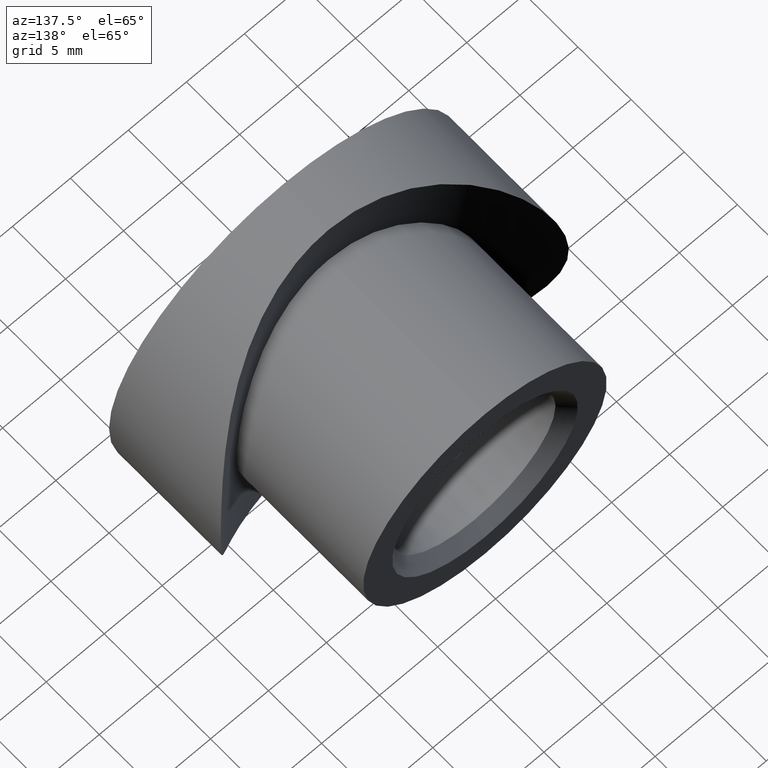
[diagram: clean part render]
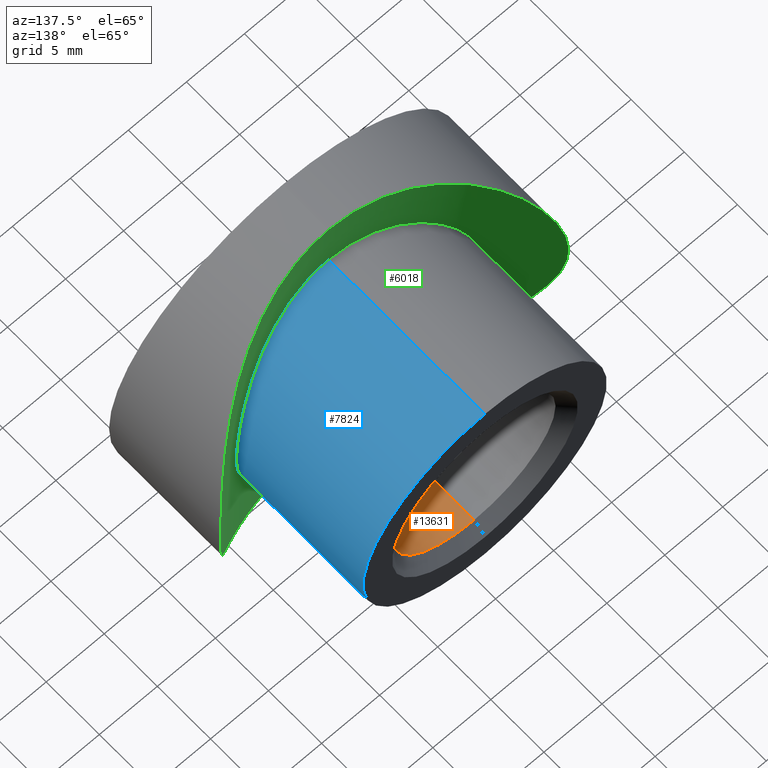
[diagram: same view with three faces highlighted in distinct colors, each labeled with its STEP entity id]
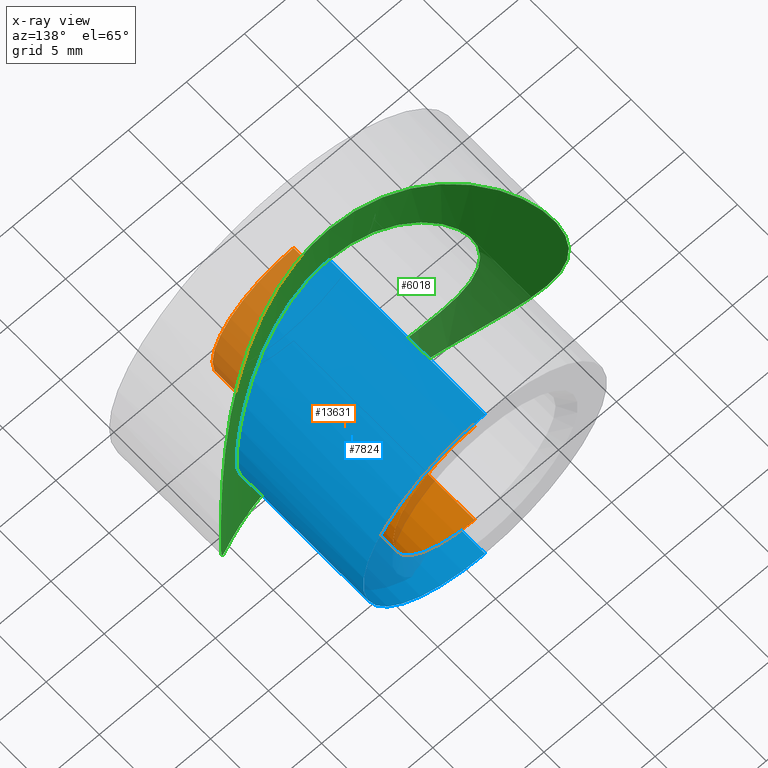
[diagram: x-ray of the same camera — body ghosted, the three highlighted faces saturated]
A machine part, auxiliary view with three faces highlighted in distinct colors.
The next image is the same camera in x-ray (body ghosted, the three faces saturated) — at least one of them is partly hidden behind the body in this view.
Their STEP definitions:

[orange] entity #13631 — the highlighted cylindrical surface (partial cylindrical patch) has radius 7 mm, axis along (-0, 1, -0).
#690 = DIRECTION ( 'NONE',  ( -0.0000000000000000000, 1.000000000000000000, -0.0000000000000000000 ) ) ;
#1044 = VECTOR ( 'NONE', #10363, 1000.000000000000000 ) ;
#1301 = VERTEX_POINT ( 'NONE', #10886 ) ;
#1446 = VERTEX_POINT ( 'NONE', #3519 ) ;
#2042 = EDGE_LOOP ( 'NONE', ( #4535, #11118, #5395, #13343 ) ) ;
#3502 = CIRCLE ( 'NONE', #4972, 6.999999999999992900 ) ;
#3519 = CARTESIAN_POINT ( 'NONE',  ( 8.572527594031464300E-016, 17.99999999999999600, -6.999999999999992900 ) ) ;
#3814 = CARTESIAN_POINT ( 'NONE',  ( 0.0000000000000000000, 0.9999999999999974500, 0.0000000000000000000 ) ) ;
#4093 = EDGE_CURVE ( 'NONE', #13008, #1301, #7764, .T. ) ;
#4130 = AXIS2_PLACEMENT_3D ( 'NONE', #3814, #6884, #13334 ) ;
#4535 = ORIENTED_EDGE ( 'NONE', *, *, #12600, .F. ) ;
#4972 = AXIS2_PLACEMENT_3D ( 'NONE', #13055, #5634, #11881 ) ;
#5395 = ORIENTED_EDGE ( 'NONE', *, *, #7915, .T. ) ;
#5634 = DIRECTION ( 'NONE',  ( 0.0000000000000000000, 1.000000000000000000, 0.0000000000000000000 ) ) ;
#5985 = VECTOR ( 'NONE', #690, 1000.000000000000000 ) ;
#6166 = CARTESIAN_POINT ( 'NONE',  ( 0.0000000000000000000, 19.00000000000000000, 0.0000000000000000000 ) ) ;
#6306 = DIRECTION ( 'NONE',  ( 0.0000000000000000000, 0.0000000000000000000, 1.000000000000000000 ) ) ;
#6884 = DIRECTION ( 'NONE',  ( -0.0000000000000000000, -1.000000000000000000, -0.0000000000000000000 ) ) ;
#7172 = LINE ( 'NONE', #9072, #1044 ) ;
#7237 = DIRECTION ( 'NONE',  ( -0.0000000000000000000, 1.000000000000000000, -0.0000000000000000000 ) ) ;
#7764 = CIRCLE ( 'NONE', #4130, 6.999999999999992900 ) ;
#7915 = EDGE_CURVE ( 'NONE', #1301, #13677, #7172, .T. ) ;
#9072 = CARTESIAN_POINT ( 'NONE',  ( 0.0000000000000000000, 19.00000000000000000, 6.999999999999992900 ) ) ;
#9827 = AXIS2_PLACEMENT_3D ( 'NONE', #6166, #7237, #6306 ) ;
#10249 = CARTESIAN_POINT ( 'NONE',  ( 8.572527594031464300E-016, 19.00000000000000000, -6.999999999999992900 ) ) ;
#10363 = DIRECTION ( 'NONE',  ( -0.0000000000000000000, 1.000000000000000000, -0.0000000000000000000 ) ) ;
#10808 = CYLINDRICAL_SURFACE ( 'NONE', #9827, 6.999999999999992900 ) ;
#10885 = EDGE_CURVE ( 'NONE', #13677, #1446, #3502, .T. ) ;
#10886 = CARTESIAN_POINT ( 'NONE',  ( 0.0000000000000000000, 0.9999999999999974500, 6.999999999999992900 ) ) ;
#10996 = LINE ( 'NONE', #10249, #5985 ) ;
#11118 = ORIENTED_EDGE ( 'NONE', *, *, #4093, .T. ) ;
#11776 = CARTESIAN_POINT ( 'NONE',  ( 0.0000000000000000000, 17.99999999999999600, 6.999999999999992900 ) ) ;
#11881 = DIRECTION ( 'NONE',  ( 0.0000000000000000000, 0.0000000000000000000, -1.000000000000000000 ) ) ;
#12106 = CARTESIAN_POINT ( 'NONE',  ( 8.572527594031464300E-016, 0.9999999999999974500, -6.999999999999992900 ) ) ;
#12600 = EDGE_CURVE ( 'NONE', #13008, #1446, #10996, .T. ) ;
#13008 = VERTEX_POINT ( 'NONE', #12106 ) ;
#13055 = CARTESIAN_POINT ( 'NONE',  ( 0.0000000000000000000, 17.99999999999999600, 0.0000000000000000000 ) ) ;
#13334 = DIRECTION ( 'NONE',  ( 0.0000000000000000000, 0.0000000000000000000, 1.000000000000000000 ) ) ;
#13343 = ORIENTED_EDGE ( 'NONE', *, *, #10885, .T. ) ;
#13631 = ADVANCED_FACE ( 'NONE', ( #13640 ), #10808, .F. ) ;
#13640 = FACE_OUTER_BOUND ( 'NONE', #2042, .T. ) ;
#13677 = VERTEX_POINT ( 'NONE', #11776 ) ;

[blue] entity #7824 — the highlighted cylindrical surface (partial cylindrical patch) has radius 10.5 mm, axis along (0, -1, 0).
#166 = CARTESIAN_POINT ( 'NONE',  ( 0.0000000000000000000, 19.00000000000000000, -10.50000000000000000 ) ) ;
#547 = DIRECTION ( 'NONE',  ( 0.0000000000000000000, -1.000000000000000000, 0.0000000000000000000 ) ) ;
#624 = CARTESIAN_POINT ( 'NONE',  ( 7.890439009454208700, 5.821697082806758200, 6.935880899200501700 ) ) ;
#673 = CARTESIAN_POINT ( 'NONE',  ( 10.41327458402616900, 7.033670763152573000, 1.391696176524313900 ) ) ;
#719 = CARTESIAN_POINT ( 'NONE',  ( 8.322389665664941200, 6.000449653503129500, 6.411185683057731000 ) ) ;
#1628 = CARTESIAN_POINT ( 'NONE',  ( 2.758563506937874000, 4.477584389150058200, 10.13705780825302900 ) ) ;
#1671 = CARTESIAN_POINT ( 'NONE',  ( 6.148089220757382700, 5.208920573632432200, -8.518664480175736700 ) ) ;
#1720 = CARTESIAN_POINT ( 'NONE',  ( 10.49933800874602200, 7.082510975959623400, -0.7083739501484708200 ) ) ;
#1811 = CARTESIAN_POINT ( 'NONE',  ( 10.50032402119260200, 7.083073122990842100, 0.3393648755433190700 ) ) ;
#1870 = VECTOR ( 'NONE', #547, 1000.000000000000000 ) ;
#2635 = VERTEX_POINT ( 'NONE', #166 ) ;
#2703 = CARTESIAN_POINT ( 'NONE',  ( 9.099530594543464800, 6.347677384681916600, -5.283144877511441400 ) ) ;
#2742 = CARTESIAN_POINT ( 'NONE',  ( 4.698843520622547000, 4.817199949430183800, -9.415080573924516500 ) ) ;
#2791 = CARTESIAN_POINT ( 'NONE',  ( 3.419655245752494900, 4.574953076819298300, 9.933557853552299500 ) ) ;
#2892 = CARTESIAN_POINT ( 'NONE',  ( 9.418170164262146900, 6.504534170963948400, 4.692893287012983800 ) ) ;
#3121 = EDGE_CURVE ( 'NONE', #2635, #3693, #7619, .T. ) ;
#3189 = ORIENTED_EDGE ( 'NONE', *, *, #13018, .F. ) ;
#3404 = CARTESIAN_POINT ( 'NONE',  ( 2.904773166325315500E-017, 4.300000000000001600, -10.50000000000000000 ) ) ;
#3417 = AXIS2_PLACEMENT_3D ( 'NONE', #6276, #10729, #5372 ) ;
#3588 = DIRECTION ( 'NONE',  ( 0.0000000000000000000, -1.000000000000000000, 0.0000000000000000000 ) ) ;
#3646 = CARTESIAN_POINT ( 'NONE',  ( 3.420527152212106300, 4.575054077402168900, -9.933350857110907500 ) ) ;
#3693 = VERTEX_POINT ( 'NONE', #8109 ) ;
#3779 = CARTESIAN_POINT ( 'NONE',  ( 0.6968046487502555000, 4.300000000000001600, 10.49999999999999800 ) ) ;
#3820 = CARTESIAN_POINT ( 'NONE',  ( 7.896984410600967200, 5.824337110095347800, -6.928356481983480600 ) ) ;
#3967 = CARTESIAN_POINT ( 'NONE',  ( 3.742320845766996300, 4.630449393884440200, 9.816404740895485800 ) ) ;
#4030 = LINE ( 'NONE', #11383, #1870 ) ;
#4188 = ORIENTED_EDGE ( 'NONE', *, *, #9175, .F. ) ;
#4719 = VERTEX_POINT ( 'NONE', #7898 ) ;
#4870 = CARTESIAN_POINT ( 'NONE',  ( 5.280986632691608000, 4.965963672652332400, 9.081716031919885500 ) ) ;
#4916 = CARTESIAN_POINT ( 'NONE',  ( 10.48295061196475700, 7.073135114375010500, 0.6934351283181737800 ) ) ;
#4960 = CARTESIAN_POINT ( 'NONE',  ( 8.326664373522946900, 6.002289022832718100, -6.405555926960670600 ) ) ;
#5053 = CARTESIAN_POINT ( 'NONE',  ( 6.945566392784113100, 5.468151671198616400, -7.881874580879978600 ) ) ;
#5372 = DIRECTION ( 'NONE',  ( 0.0000000000000000000, 0.0000000000000000000, -1.000000000000000000 ) ) ;
#5378 = FACE_OUTER_BOUND ( 'NONE', #10359, .T. ) ;
#5825 = AXIS2_PLACEMENT_3D ( 'NONE', #5903, #6998, #8086 ) ;
#5903 = CARTESIAN_POINT ( 'NONE',  ( 0.0000000000000000000, 19.00000000000000000, 0.0000000000000000000 ) ) ;
#5920 = CARTESIAN_POINT ( 'NONE',  ( 7.194948269318201600, 5.556649647448783600, -7.654810200033760600 ) ) ;
#6011 = CARTESIAN_POINT ( 'NONE',  ( 9.817696255442642800, 6.709703220488080400, 3.739202374496441100 ) ) ;
#6032 = VECTOR ( 'NONE', #3588, 1000.000000000000000 ) ;
#6276 = CARTESIAN_POINT ( 'NONE',  ( 0.0000000000000000000, 19.00000000000000000, 0.0000000000000000000 ) ) ;
#6683 = CYLINDRICAL_SURFACE ( 'NONE', #3417, 10.50000000000000000 ) ;
#6714 = CARTESIAN_POINT ( 'NONE',  ( 3.747784961578300800, 4.631400502847485600, -9.814393819435023800 ) ) ;
#6930 = CARTESIAN_POINT ( 'NONE',  ( 6.427913481522175200, 5.289310483119205500, 8.330752378494697300 ) ) ;
#6978 = CARTESIAN_POINT ( 'NONE',  ( 9.936382722030831600, 6.772438335978074900, 3.411430120636048400 ) ) ;
#6998 = DIRECTION ( 'NONE',  ( 0.0000000000000000000, -1.000000000000000000, 0.0000000000000000000 ) ) ;
#7022 = CARTESIAN_POINT ( 'NONE',  ( 4.372657016616589200, 4.753362237969396300, 9.552310608683706400 ) ) ;
#7069 = CARTESIAN_POINT ( 'NONE',  ( 10.42968844074097700, 7.042311886337823300, -1.397457432956600500 ) ) ;
#7112 = CARTESIAN_POINT ( 'NONE',  ( 9.815874038798524400, 6.708763668050159400, -3.743645389992564400 ) ) ;
#7619 = CIRCLE ( 'NONE', #5825, 10.50000000000000000 ) ;
#7824 = ADVANCED_FACE ( 'NONE', ( #5378 ), #6683, .T. ) ;
#7834 = VERTEX_POINT ( 'NONE', #12838 ) ;
#7885 = CARTESIAN_POINT ( 'NONE',  ( 1.398793842759510400, 4.335184064037712800, -10.42946661615356900 ) ) ;
#7898 = CARTESIAN_POINT ( 'NONE',  ( 1.285879310242526200E-015, 4.300000000000003400, 10.50000000000000000 ) ) ;
#8020 = CARTESIAN_POINT ( 'NONE',  ( 9.420525729007872300, 6.505751420387722900, -4.687083399661943000 ) ) ;
#8064 = CARTESIAN_POINT ( 'NONE',  ( 6.948484631111452500, 5.464596505064499800, 7.900808427189319100 ) ) ;
#8086 = DIRECTION ( 'NONE',  ( 0.0000000000000000000, 0.0000000000000000000, -1.000000000000000000 ) ) ;
#8109 = CARTESIAN_POINT ( 'NONE',  ( 1.285879139104720800E-015, 19.00000000000000000, 10.50000000000000000 ) ) ;
#8112 = CARTESIAN_POINT ( 'NONE',  ( 10.13740662817753700, 6.880482679380179400, -2.757436048349687600 ) ) ;
#8156 = CARTESIAN_POINT ( 'NONE',  ( 4.680325839736120500, 4.820782951441332300, 9.405367400213373600 ) ) ;
#8370 = EDGE_CURVE ( 'NONE', #3693, #4719, #4030, .T. ) ;
#8958 = CARTESIAN_POINT ( 'NONE',  ( 2.417888207784877300, 4.435567155295137500, -10.22369385998308100 ) ) ;
#8967 = B_SPLINE_CURVE_WITH_KNOTS ( 'NONE', 3,
 ( #3404, #11951, #7885, #8958, #10134, #3646, #6714, #2742, #9093, #1671, #12382, #5053, #5920, #10234, #3820, #4960, #9146, #2703, #8020, #7112, #13526, #8112, #13383, #7069, #1720, #1811, #4916, #673, #11237, #12431, #12474, #6978, #6011, #2892, #13475, #9198, #719, #624, #11334, #8064, #6930, #13431, #4870, #8156, #7022, #3967, #2791, #1628, #11281, #10183, #3779, #12332 ),
 .UNSPECIFIED., .F., .F.,
 ( 4, 2, 2, 2, 2, 2, 2, 2, 2, 2, 2, 2, 2, 2, 2, 2, 2, 2, 2, 2, 2, 2, 2, 2, 2, 4 ),
 ( 2.816877903401058500E-020, 0.002086768023174359700, 0.003130152034761539800, 0.004173536046348719400, 0.006260304069523081300, 0.007303688081110262600, 0.008347072092697444000, 0.009390456104284622800, 0.01043384011587180300, 0.01252060813904616100, 0.01356399215063334000, 0.01460737616222051700, 0.01669414418539487400, 0.01773752819698205500, 0.01878091220856923500, 0.01982429622015641600, 0.02086768023174359300, 0.02295444825491795000, 0.02399783226650512700, 0.02504121627809230400, 0.02712798430126665800, 0.02817136831285383200, 0.02921475232444100500, 0.03025813633602818600, 0.03130152034761535900, 0.03338828837078971400 ),
 .UNSPECIFIED. ) ;
#9093 = CARTESIAN_POINT ( 'NONE',  ( 5.298212740814173900, 4.964261319171495900, -9.090958372024250200 ) ) ;
#9146 = CARTESIAN_POINT ( 'NONE',  ( 8.530992962269181100, 6.091100270023599900, -6.130899468036130200 ) ) ;
#9175 = EDGE_CURVE ( 'NONE', #2635, #7834, #11716, .T. ) ;
#9198 = CARTESIAN_POINT ( 'NONE',  ( 8.526829277208397800, 6.089272672983135200, 6.136653468886832400 ) ) ;
#10134 = CARTESIAN_POINT ( 'NONE',  ( 2.754303605458389400, 4.476984528578618900, -10.13830739810374500 ) ) ;
#10183 = CARTESIAN_POINT ( 'NONE',  ( 1.388380600808600600, 4.334273294225856600, 10.43132634832901800 ) ) ;
#10234 = CARTESIAN_POINT ( 'NONE',  ( 7.670657698409738300, 5.734739709363876300, -7.178050589856086500 ) ) ;
#10359 = EDGE_LOOP ( 'NONE', ( #13712, #10726, #3189, #4188 ) ) ;
#10726 = ORIENTED_EDGE ( 'NONE', *, *, #8370, .T. ) ;
#10729 = DIRECTION ( 'NONE',  ( 0.0000000000000000000, -1.000000000000000000, 0.0000000000000000000 ) ) ;
#11237 = CARTESIAN_POINT ( 'NONE',  ( 10.36129669431563000, 7.004333769178497700, 1.735969472724488800 ) ) ;
#11281 = CARTESIAN_POINT ( 'NONE',  ( 2.417858127414836700, 4.435507150782160400, 10.22382045006685800 ) ) ;
#11334 = CARTESIAN_POINT ( 'NONE',  ( 7.663281591941424300, 5.731873553342794000, 7.185935454803098000 ) ) ;
#11383 = CARTESIAN_POINT ( 'NONE',  ( 1.285879139104720800E-015, 19.00000000000000000, 10.50000000000000000 ) ) ;
#11716 = LINE ( 'NONE', #13421, #6032 ) ;
#11951 = CARTESIAN_POINT ( 'NONE',  ( 0.7063582450768741700, 4.300000000000000700, -10.49999999999999600 ) ) ;
#12332 = CARTESIAN_POINT ( 'NONE',  ( 1.285879310242526200E-015, 4.300000000000003400, 10.50000000000000000 ) ) ;
#12382 = CARTESIAN_POINT ( 'NONE',  ( 6.422878217163275700, 5.294493933777248500, -8.313331151396738500 ) ) ;
#12431 = CARTESIAN_POINT ( 'NONE',  ( 10.22430701288150200, 6.928255746539877100, 2.415285760362441400 ) ) ;
#12474 = CARTESIAN_POINT ( 'NONE',  ( 10.13929250169866600, 6.881514158143426500, 2.750328095273896000 ) ) ;
#12838 = CARTESIAN_POINT ( 'NONE',  ( 2.904773166325315500E-017, 4.300000000000001600, -10.50000000000000000 ) ) ;
#13018 = EDGE_CURVE ( 'NONE', #7834, #4719, #8967, .T. ) ;
#13383 = CARTESIAN_POINT ( 'NONE',  ( 10.22379430609146700, 6.927972839381005200, -2.417509472307104900 ) ) ;
#13421 = CARTESIAN_POINT ( 'NONE',  ( 0.0000000000000000000, 19.00000000000000000, -10.50000000000000000 ) ) ;
#13431 = CARTESIAN_POINT ( 'NONE',  ( 5.575016568920773400, 5.044030189827684500, 8.904300477055596000 ) ) ;
#13475 = CARTESIAN_POINT ( 'NONE',  ( 9.094919100876024800, 6.345495096600614300, 5.290914838471390000 ) ) ;
#13526 = CARTESIAN_POINT ( 'NONE',  ( 9.933179071554413000, 6.770734346207996500, -3.420880038555818500 ) ) ;
#13712 = ORIENTED_EDGE ( 'NONE', *, *, #3121, .T. ) ;

[green] entity #6018 — the highlighted cylindrical surface (partial cylindrical patch) has radius 21.2 mm, axis along (-0, -0, 1).
#434 = CARTESIAN_POINT ( 'NONE',  ( 6.351530455719399400, 5.268324486726907500, -13.59783177504357700 ) ) ;
#475 = CARTESIAN_POINT ( 'NONE',  ( 6.950350054891880900E-016, 4.300000000000002500, -15.00000000000000000 ) ) ;
#537 = CARTESIAN_POINT ( 'NONE',  ( -2.027758882697915600, 4.391114784360748800, 14.87099088058241800 ) ) ;
#604 = CARTESIAN_POINT ( 'NONE',  ( 14.89566689747022100, 10.41489345679889800, 1.784251289190086100 ) ) ;
#624 = CARTESIAN_POINT ( 'NONE',  ( 7.890439009454208700, 5.821697082806758200, 6.935880899200501700 ) ) ;
#653 = CARTESIAN_POINT ( 'NONE',  ( 14.99378779998259700, 10.51244968222521500, -0.5022815987675073300 ) ) ;
#673 = CARTESIAN_POINT ( 'NONE',  ( 10.41327458402616900, 7.033670763152573000, 1.391696176524313900 ) ) ;
#697 = CARTESIAN_POINT ( 'NONE',  ( 0.5101671749474547800, 4.299999999999998900, 15.00000000000000900 ) ) ;
#713 = CARTESIAN_POINT ( 'NONE',  ( -14.79009636119930200, 10.31076182993651200, -2.550444006374978900 ) ) ;
#719 = CARTESIAN_POINT ( 'NONE',  ( 8.322389665664941200, 6.000449653503129500, 6.411185683057731000 ) ) ;
#754 = CARTESIAN_POINT ( 'NONE',  ( -6.802766067351401900, 5.399204079521712900, -13.40456851880294800 ) ) ;
#783 = CARTESIAN_POINT ( 'NONE',  ( 1.836969968176364600E-015, 4.300000000000002500, 15.00000000000000000 ) ) ;
#854 = CARTESIAN_POINT ( 'NONE',  ( 1.836969968176364600E-015, 4.300000000000002500, 15.00000000000000000 ) ) ;
#862 = CARTESIAN_POINT ( 'NONE',  ( 2.904773166325315500E-017, 4.300000000000001600, -10.50000000000000000 ) ) ;
#897 = CARTESIAN_POINT ( 'NONE',  ( -4.986994897163699900, 4.889046769830332400, -14.15568298008697000 ) ) ;
#917 = CARTESIAN_POINT ( 'NONE',  ( -9.407379650426881000, 6.500695274963536700, -4.676310954867898500 ) ) ;
#959 = CARTESIAN_POINT ( 'NONE',  ( -10.35958587051038500, 7.003370812726722700, 1.746674611331709100 ) ) ;
#1007 = CARTESIAN_POINT ( 'NONE',  ( -3.432007689982226500, 4.569715658072176700, -9.946962982609976600 ) ) ;
#1052 = CARTESIAN_POINT ( 'NONE',  ( -1.405970528893738100, 4.343763487546207900, -10.41140200999435100 ) ) ;
#1468 = CARTESIAN_POINT ( 'NONE',  ( 13.99838597507499600, 9.576830677662275800, -5.411080993311570000 ) ) ;
#1480 = VERTEX_POINT ( 'NONE', #6618 ) ;
#1628 = CARTESIAN_POINT ( 'NONE',  ( 2.758563506937874000, 4.477584389150058200, 10.13705780825302900 ) ) ;
#1646 = CARTESIAN_POINT ( 'NONE',  ( 12.70436926886991300, 8.525168047591428400, 7.988835649168540200 ) ) ;
#1671 = CARTESIAN_POINT ( 'NONE',  ( 6.148089220757382700, 5.208920573632432200, -8.518664480175736700 ) ) ;
#1699 = CARTESIAN_POINT ( 'NONE',  ( 12.95086280399891400, 8.713078277714872800, 7.583238486127876300 ) ) ;
#1720 = CARTESIAN_POINT ( 'NONE',  ( 10.49933800874602200, 7.082510975959623400, -0.7083739501484708200 ) ) ;
#1754 = CARTESIAN_POINT ( 'NONE',  ( -1.028825825456363600, 4.318897591410931500, -14.97332496691219100 ) ) ;
#1788 = CARTESIAN_POINT ( 'NONE',  ( 4.981939994508439700, 4.887887231530133800, 14.15736619453555400 ) ) ;
#1804 = CARTESIAN_POINT ( 'NONE',  ( -8.063616169286939700, 5.888649289912376800, 12.65735501310083700 ) ) ;
#1811 = CARTESIAN_POINT ( 'NONE',  ( 10.50032402119260200, 7.083073122990842100, 0.3393648755433190700 ) ) ;
#1855 = CARTESIAN_POINT ( 'NONE',  ( -14.58661984286886500, 10.11525339434871800, -3.533020883442251000 ) ) ;
#1902 = CARTESIAN_POINT ( 'NONE',  ( -14.45986925495791700, 9.995396137928063100, -4.019731287298889700 ) ) ;
#1944 = CARTESIAN_POINT ( 'NONE',  ( -8.838415095897072900, 6.225411552112397800, -12.12901975368032500 ) ) ;
#2013 = CARTESIAN_POINT ( 'NONE',  ( -0.6956339859618653200, 4.300000000000002500, 10.50000000000000700 ) ) ;
#2029 = ORIENTED_EDGE ( 'NONE', *, *, #4200, .F. ) ;
#2496 = CARTESIAN_POINT ( 'NONE',  ( 8.060838096176546200, 5.887433030605972600, -12.65926637552613300 ) ) ;
#2549 = CARTESIAN_POINT ( 'NONE',  ( 11.31892550391120300, 7.558015682289249200, -9.888181463966814600 ) ) ;
#2593 = CARTESIAN_POINT ( 'NONE',  ( 14.96780463597057000, 10.48650069110615800, -1.015275221201316100 ) ) ;
#2703 = CARTESIAN_POINT ( 'NONE',  ( 9.099530594543464800, 6.347677384681916600, -5.283144877511441400 ) ) ;
#2742 = CARTESIAN_POINT ( 'NONE',  ( 4.698843520622547000, 4.817199949430183800, -9.415080573924516500 ) ) ;
#2765 = CARTESIAN_POINT ( 'NONE',  ( 10.31771975614302400, 6.976129878483612300, 10.89814207383176400 ) ) ;
#2782 = CARTESIAN_POINT ( 'NONE',  ( -12.95786228054332600, 8.718473233944790100, 7.571362317011447900 ) ) ;
#2791 = CARTESIAN_POINT ( 'NONE',  ( 3.419655245752494900, 4.574953076819298300, 9.933557853552299500 ) ) ;
#2814 = CARTESIAN_POINT ( 'NONE',  ( 14.74039007328632200, 10.26300763193868800, 2.790115978284368300 ) ) ;
#2829 = CARTESIAN_POINT ( 'NONE',  ( -14.48799868008896000, 10.02039125372096300, 4.015861127843321800 ) ) ;
#2885 = CARTESIAN_POINT ( 'NONE',  ( -3.285343998584550300, 4.554614013068140300, -14.63798253205001200 ) ) ;
#2892 = CARTESIAN_POINT ( 'NONE',  ( 9.418170164262146900, 6.504534170963948400, 4.692893287012983800 ) ) ;
#2916 = CARTESIAN_POINT ( 'NONE',  ( 14.48454752923775700, 10.01715601495642900, 4.027335326478662700 ) ) ;
#2930 = CARTESIAN_POINT ( 'NONE',  ( -5.451559102240898900, 5.007552389825892900, -13.98286537839695100 ) ) ;
#2974 = CARTESIAN_POINT ( 'NONE',  ( -11.91986201499825200, 7.956296539637131500, 9.154805784529436600 ) ) ;
#2992 = CARTESIAN_POINT ( 'NONE',  ( -7.900160548463390800, 5.825611308537931500, -6.924748475864102900 ) ) ;
#3086 = CARTESIAN_POINT ( 'NONE',  ( -1.403606285354493700, 4.335471196759478100, 10.42888986987292900 ) ) ;
#3133 = CARTESIAN_POINT ( 'NONE',  ( -6.432278153302644500, 5.290903900594039500, -8.326755406417532900 ) ) ;
#3173 = CARTESIAN_POINT ( 'NONE',  ( -5.303509153129605000, 4.965750607179512800, 9.087503077350364200 ) ) ;
#3404 = CARTESIAN_POINT ( 'NONE',  ( 2.904773166325315500E-017, 4.300000000000001600, -10.50000000000000000 ) ) ;
#3621 = CARTESIAN_POINT ( 'NONE',  ( 4.978384514409853500, 4.886935098768449700, -14.15875757066219600 ) ) ;
#3646 = CARTESIAN_POINT ( 'NONE',  ( 3.420527152212106300, 4.575054077402168900, -9.933350857110907500 ) ) ;
#3779 = CARTESIAN_POINT ( 'NONE',  ( 0.6968046487502555000, 4.300000000000001600, 10.49999999999999800 ) ) ;
#3820 = CARTESIAN_POINT ( 'NONE',  ( 7.896984410600967200, 5.824337110095347800, -6.928356481983480600 ) ) ;
#3898 = CARTESIAN_POINT ( 'NONE',  ( 9.231927247915733000, 6.411257782142962800, 11.83209348245944900 ) ) ;
#3899 = B_SPLINE_CURVE_WITH_KNOTS ( 'NONE', 3,
 ( #475, #12215, #5682, #13139, #11130, #3621, #13185, #434, #9028, #6731, #2496, #9974, #11042, #2549, #11173, #13275, #7858, #1468, #8932, #12262, #10020, #11092, #5772, #8979, #2593, #653, #8045, #8181, #5904, #604, #9173, #10298, #2814, #2916, #12455, #13453, #5991, #1699, #1646, #8087, #11308, #2765, #13553, #3898, #6038, #10204, #12359, #4939, #1788, #9118, #11362, #7051, #5940, #13504, #697, #783 ),
 .UNSPECIFIED., .F., .F.,
 ( 4, 2, 2, 2, 2, 2, 2, 2, 2, 2, 2, 2, 2, 2, 2, 2, 2, 2, 2, 2, 2, 2, 2, 2, 2, 2, 2, 4 ),
 ( 7.602895152439071400E-019, 0.003050122000959232000, 0.004575183001438847300, 0.006100244001918463100, 0.007625305002398078900, 0.009150366002877692900, 0.01220048800383693000, 0.01525061000479616600, 0.01830073200575540300, 0.01982579300623502400, 0.02135085400671464500, 0.02287591500719426600, 0.02363844550743407500, 0.02440097600767388700, 0.02592603700815350800, 0.02668856750839331300, 0.02745109800863312200, 0.03050122000959236400, 0.03202628101007198900, 0.03355134201055160600, 0.03660146401151085500, 0.03812652501199047900, 0.03965158601247011100, 0.04270170801342936000, 0.04422676901390898400, 0.04575183001438861600, 0.04727689101486824000, 0.04880195201534787100 ),
 .UNSPECIFIED. ) ;
#3912 = CARTESIAN_POINT ( 'NONE',  ( -9.970519523804245700, 6.786430685496047700, 11.21678604982197700 ) ) ;
#3959 = CARTESIAN_POINT ( 'NONE',  ( -4.032369674837301700, 4.662527842270971900, 14.48385168249562800 ) ) ;
#3967 = CARTESIAN_POINT ( 'NONE',  ( 3.742320845766996300, 4.630449393884440200, 9.816404740895485800 ) ) ;
#4007 = CARTESIAN_POINT ( 'NONE',  ( -14.89680169544232600, 10.41339362418425000, 2.028434272794920700 ) ) ;
#4027 = CARTESIAN_POINT ( 'NONE',  ( -7.911542210612016600, 5.824973074603275500, 6.936379704263332600 ) ) ;
#4058 = CARTESIAN_POINT ( 'NONE',  ( -10.30865992864120500, 6.971121886956211700, -10.90660802976909600 ) ) ;
#4078 = CARTESIAN_POINT ( 'NONE',  ( -8.531477826554315400, 6.091326435226615200, -6.130111464772147300 ) ) ;
#4120 = CARTESIAN_POINT ( 'NONE',  ( -3.423809877560742600, 4.568164053861879700, 9.950283369266646400 ) ) ;
#4174 = CARTESIAN_POINT ( 'NONE',  ( -9.553655874262727100, 6.574104787646476200, 4.369616993745715700 ) ) ;
#4200 = EDGE_CURVE ( 'NONE', #8421, #1480, #6957, .T. ) ;
#4224 = CARTESIAN_POINT ( 'NONE',  ( -9.954027180045585500, 6.779792701391567500, -3.411811391501967400 ) ) ;
#4719 = VERTEX_POINT ( 'NONE', #7898 ) ;
#4837 = DIRECTION ( 'NONE',  ( 1.000000000000000000, 0.0000000000000000000, 0.0000000000000000000 ) ) ;
#4870 = CARTESIAN_POINT ( 'NONE',  ( 5.280986632691608000, 4.965963672652332400, 9.081716031919885500 ) ) ;
#4916 = CARTESIAN_POINT ( 'NONE',  ( 10.48295061196475700, 7.073135114375010500, 0.6934351283181737800 ) ) ;
#4939 = CARTESIAN_POINT ( 'NONE',  ( 5.454151336420805400, 5.008095883092084800, 13.98209102784477100 ) ) ;
#4953 = CARTESIAN_POINT ( 'NONE',  ( -3.531802928671224300, 4.594774945794846100, -14.58048465226533000 ) ) ;
#4960 = CARTESIAN_POINT ( 'NONE',  ( 8.326664373522946900, 6.002289022832718100, -6.405555926960670600 ) ) ;
#4997 = CARTESIAN_POINT ( 'NONE',  ( -7.651717528125248100, 5.723775435737874100, 12.91086326727037400 ) ) ;
#5045 = CARTESIAN_POINT ( 'NONE',  ( -15.00048775688431000, 10.51916666085264800, 1.019177693972246100 ) ) ;
#5053 = CARTESIAN_POINT ( 'NONE',  ( 6.945566392784113100, 5.468151671198616400, -7.881874580879978600 ) ) ;
#5110 = CARTESIAN_POINT ( 'NONE',  ( -2.764302801592954100, 4.469878267385382700, 10.15334843996453500 ) ) ;
#5136 = CARTESIAN_POINT ( 'NONE',  ( -14.99975356287486200, 10.51843155163788900, -0.5203192117389520100 ) ) ;
#5207 = CARTESIAN_POINT ( 'NONE',  ( -6.944286580727840900, 5.467689969729252500, 7.883068273684606300 ) ) ;
#5253 = CARTESIAN_POINT ( 'NONE',  ( -8.908282766949774600, 6.261361233367190400, -5.568382046841303900 ) ) ;
#5600 = ORIENTED_EDGE ( 'NONE', *, *, #11053, .F. ) ;
#5682 = CARTESIAN_POINT ( 'NONE',  ( 2.043170436509503600, 4.375080336109362200, -14.89440917403802100 ) ) ;
#5772 = CARTESIAN_POINT ( 'NONE',  ( 14.86973174700734800, 10.38919325975518100, -2.038058840166234300 ) ) ;
#5904 = CARTESIAN_POINT ( 'NONE',  ( 14.97343534145617900, 10.49195012549242800, 1.026651843955651300 ) ) ;
#5915 = CARTESIAN_POINT ( 'NONE',  ( -1.016785370421006400, 4.318333666968232600, 14.97412178951485000 ) ) ;
#5920 = CARTESIAN_POINT ( 'NONE',  ( 7.194948269318201600, 5.556649647448783600, -7.654810200033760600 ) ) ;
#5940 = CARTESIAN_POINT ( 'NONE',  ( 2.048559601778868500, 4.392956673467700100, 14.86837835065094500 ) ) ;
#5991 = CARTESIAN_POINT ( 'NONE',  ( 13.40915369830361400, 9.076839969926572500, 6.739803439327005200 ) ) ;
#6004 = CARTESIAN_POINT ( 'NONE',  ( -2.542018403632995100, 4.446998794519122300, -14.79169407559993800 ) ) ;
#6011 = CARTESIAN_POINT ( 'NONE',  ( 9.817696255442642800, 6.709703220488080400, 3.739202374496441100 ) ) ;
#6018 = ADVANCED_FACE ( 'NONE', ( #9765, #12269 ), #12438, .F. ) ;
#6038 = CARTESIAN_POINT ( 'NONE',  ( 8.852002315393969300, 6.231710801410932800, 12.11899376402822300 ) ) ;
#6051 = CARTESIAN_POINT ( 'NONE',  ( -6.348298783534338500, 5.267274015877754700, 13.59939816635428000 ) ) ;
#6094 = CARTESIAN_POINT ( 'NONE',  ( -11.32503118745980300, 7.561768847598567200, 9.881486462733663600 ) ) ;
#6153 = CARTESIAN_POINT ( 'NONE',  ( -10.15639936098318700, 6.890532660766268700, -2.753815409604394700 ) ) ;
#6178 = CARTESIAN_POINT ( 'NONE',  ( -13.42676151907877400, 9.086292912462745600, -6.756797095778332500 ) ) ;
#6198 = CARTESIAN_POINT ( 'NONE',  ( -10.36258161678365800, 7.005052503644568800, -1.728695767908844200 ) ) ;
#6291 = CARTESIAN_POINT ( 'NONE',  ( -5.589656412339009800, 5.048076299743408800, -8.894970806693912400 ) ) ;
#6340 = CARTESIAN_POINT ( 'NONE',  ( -8.905555869417467500, 6.260091620277753700, 5.572792546476192900 ) ) ;
#6618 = CARTESIAN_POINT ( 'NONE',  ( 6.950350054891880900E-016, 4.300000000000002500, -15.00000000000000000 ) ) ;
#6679 = EDGE_CURVE ( 'NONE', #4719, #7834, #10253, .T. ) ;
#6714 = CARTESIAN_POINT ( 'NONE',  ( 3.747784961578300800, 4.631400502847485600, -9.814393819435023800 ) ) ;
#6731 = CARTESIAN_POINT ( 'NONE',  ( 7.645083418236099600, 5.721252006725754000, -12.91471632741381000 ) ) ;
#6863 = ORIENTED_EDGE ( 'NONE', *, *, #13018, .T. ) ;
#6930 = CARTESIAN_POINT ( 'NONE',  ( 6.427913481522175200, 5.289310483119205500, 8.330752378494697300 ) ) ;
#6957 = B_SPLINE_CURVE_WITH_KNOTS ( 'NONE', 3,
 ( #10036, #13294, #5915, #537, #8055, #3959, #10361, #6051, #12424, #4997, #1804, #8341, #10406, #3912, #8291, #6094, #2974, #13518, #2782, #8198, #10453, #11418, #2829, #4007, #5045, #5136, #9278, #12514, #713, #1855, #1902, #10310, #8248, #6178, #9322, #7106, #11377, #4058, #10271, #13467, #1944, #11327, #754, #2930, #897, #12606, #7063, #4953, #2885, #6004, #8151, #1754, #12469, #9242 ),
 .UNSPECIFIED., .F., .F.,
 ( 4, 2, 2, 2, 2, 2, 2, 2, 2, 2, 2, 2, 2, 2, 2, 2, 2, 2, 2, 2, 2, 2, 2, 2, 2, 2, 4 ),
 ( 0.04880195201534787100, 0.05032462339735615400, 0.05184729477936444300, 0.05489263754338101500, 0.05641530892538929700, 0.05793798030739758700, 0.05946065168940587600, 0.06098332307141415800, 0.06402866583543073700, 0.06555133721743901200, 0.06707400859944730200, 0.07011935136346386700, 0.07316469412748044500, 0.07468736550948872100, 0.07621003689149701000, 0.07773270827350529900, 0.07925537965551357500, 0.08230072241953015300, 0.08534606518354671800, 0.08686873656555500800, 0.08839140794756328300, 0.09143675071157986200, 0.09295942209358815100, 0.09372075778459229600, 0.09448209347559644000, 0.09600476485760473000, 0.09752743623961300500 ),
 .UNSPECIFIED. ) ;
#6978 = CARTESIAN_POINT ( 'NONE',  ( 9.936382722030831600, 6.772438335978074900, 3.411430120636048400 ) ) ;
#7022 = CARTESIAN_POINT ( 'NONE',  ( 4.372657016616589200, 4.753362237969396300, 9.552310608683706400 ) ) ;
#7051 = CARTESIAN_POINT ( 'NONE',  ( 2.551696363798559500, 4.448193406101355900, 14.78999408664829900 ) ) ;
#7063 = CARTESIAN_POINT ( 'NONE',  ( -4.022094626891260700, 4.683544458619524100, -14.45292079249893300 ) ) ;
#7069 = CARTESIAN_POINT ( 'NONE',  ( 10.42968844074097700, 7.042311886337823300, -1.397457432956600500 ) ) ;
#7106 = CARTESIAN_POINT ( 'NONE',  ( -11.90498977875692300, 7.945938441045331800, -9.175073987099693800 ) ) ;
#7112 = CARTESIAN_POINT ( 'NONE',  ( 9.815874038798524400, 6.708763668050159400, -3.743645389992564400 ) ) ;
#7227 = CARTESIAN_POINT ( 'NONE',  ( -1.754478482807921000, 4.369953016269477100, -10.35821166336807100 ) ) ;
#7267 = CARTESIAN_POINT ( 'NONE',  ( -10.15122260461654900, 6.887694327907813600, 2.773129289614705500 ) ) ;
#7314 = CARTESIAN_POINT ( 'NONE',  ( -9.083132616050976400, 6.343562609927522200, 5.278581099841313000 ) ) ;
#7365 = CARTESIAN_POINT ( 'NONE',  ( -4.692638599188235600, 4.823534988855682200, -9.399342323396521000 ) ) ;
#7411 = CARTESIAN_POINT ( 'NONE',  ( -10.41234856495768000, 7.033148501072043100, 1.397979841874041900 ) ) ;
#7793 = ORIENTED_EDGE ( 'NONE', *, *, #6679, .T. ) ;
#7834 = VERTEX_POINT ( 'NONE', #12838 ) ;
#7858 = CARTESIAN_POINT ( 'NONE',  ( 13.43100386595287400, 9.089739189981980200, -6.748819515009666100 ) ) ;
#7885 = CARTESIAN_POINT ( 'NONE',  ( 1.398793842759510400, 4.335184064037712800, -10.42946661615356900 ) ) ;
#7898 = CARTESIAN_POINT ( 'NONE',  ( 1.285879310242526200E-015, 4.300000000000003400, 10.50000000000000000 ) ) ;
#7959 = EDGE_LOOP ( 'NONE', ( #6863, #7793 ) ) ;
#8020 = CARTESIAN_POINT ( 'NONE',  ( 9.420525729007872300, 6.505751420387722900, -4.687083399661943000 ) ) ;
#8045 = CARTESIAN_POINT ( 'NONE',  ( 15.00014536824234500, 10.51882384539205300, -0.2464609913336577300 ) ) ;
#8055 = CARTESIAN_POINT ( 'NONE',  ( -2.532839929336291100, 4.445789383782880600, 14.79341789719770600 ) ) ;
#8064 = CARTESIAN_POINT ( 'NONE',  ( 6.948484631111452500, 5.464596505064499800, 7.900808427189319100 ) ) ;
#8087 = CARTESIAN_POINT ( 'NONE',  ( 11.91380816464897500, 7.952212437312414100, 9.162485973406612400 ) ) ;
#8112 = CARTESIAN_POINT ( 'NONE',  ( 10.13740662817753700, 6.880482679380179400, -2.757436048349687600 ) ) ;
#8151 = CARTESIAN_POINT ( 'NONE',  ( -2.041211909607534700, 4.392393888402693800, -14.86917607280101600 ) ) ;
#8156 = CARTESIAN_POINT ( 'NONE',  ( 4.680325839736120500, 4.820782951441332300, 9.405367400213373600 ) ) ;
#8181 = CARTESIAN_POINT ( 'NONE',  ( 14.99970170496069100, 10.51837962911275600, 0.5190039660785242800 ) ) ;
#8198 = CARTESIAN_POINT ( 'NONE',  ( -13.41665539765794300, 9.082960272270437200, 6.724959491140766400 ) ) ;
#8248 = CARTESIAN_POINT ( 'NONE',  ( -13.99335161939706200, 9.572412713554550500, -5.423943991861529300 ) ) ;
#8291 = CARTESIAN_POINT ( 'NONE',  ( -10.32358387329570200, 6.979397064903382700, 10.89259576678398400 ) ) ;
#8341 = CARTESIAN_POINT ( 'NONE',  ( -8.856598920751219200, 6.233769492799364500, 12.11574171110473600 ) ) ;
#8413 = CARTESIAN_POINT ( 'NONE',  ( -10.48211066065938400, 7.072657190486610900, 0.7047739879942980200 ) ) ;
#8421 = VERTEX_POINT ( 'NONE', #854 ) ;
#8447 = CARTESIAN_POINT ( 'NONE',  ( -9.083557922633612900, 6.343764790851551500, -5.277845346355212200 ) ) ;
#8499 = CARTESIAN_POINT ( 'NONE',  ( -0.7051386416524065800, 4.308825516384200000, -10.48221467238106000 ) ) ;
#8932 = CARTESIAN_POINT ( 'NONE',  ( 14.16948291444263800, 9.729586025192775300, -4.946876846338229300 ) ) ;
#8958 = CARTESIAN_POINT ( 'NONE',  ( 2.417888207784877300, 4.435567155295137500, -10.22369385998308100 ) ) ;
#8967 = B_SPLINE_CURVE_WITH_KNOTS ( 'NONE', 3,
 ( #3404, #11951, #7885, #8958, #10134, #3646, #6714, #2742, #9093, #1671, #12382, #5053, #5920, #10234, #3820, #4960, #9146, #2703, #8020, #7112, #13526, #8112, #13383, #7069, #1720, #1811, #4916, #673, #11237, #12431, #12474, #6978, #6011, #2892, #13475, #9198, #719, #624, #11334, #8064, #6930, #13431, #4870, #8156, #7022, #3967, #2791, #1628, #11281, #10183, #3779, #12332 ),
 .UNSPECIFIED., .F., .F.,
 ( 4, 2, 2, 2, 2, 2, 2, 2, 2, 2, 2, 2, 2, 2, 2, 2, 2, 2, 2, 2, 2, 2, 2, 2, 2, 4 ),
 ( 2.816877903401058500E-020, 0.002086768023174359700, 0.003130152034761539800, 0.004173536046348719400, 0.006260304069523081300, 0.007303688081110262600, 0.008347072092697444000, 0.009390456104284622800, 0.01043384011587180300, 0.01252060813904616100, 0.01356399215063334000, 0.01460737616222051700, 0.01669414418539487400, 0.01773752819698205500, 0.01878091220856923500, 0.01982429622015641600, 0.02086768023174359300, 0.02295444825491795000, 0.02399783226650512700, 0.02504121627809230400, 0.02712798430126665800, 0.02817136831285383200, 0.02921475232444100500, 0.03025813633602818600, 0.03130152034761535900, 0.03338828837078971400 ),
 .UNSPECIFIED. ) ;
#8979 = CARTESIAN_POINT ( 'NONE',  ( 14.94804833223627900, 10.46679669200955600, -1.273382335794185400 ) ) ;
#9028 = CARTESIAN_POINT ( 'NONE',  ( 6.791217099102302900, 5.412054784869132700, -13.38344382445033700 ) ) ;
#9063 = CARTESIAN_POINT ( 'NONE',  ( 0.0000000000000000000, 25.50000000000000400, -15.00000000000000000 ) ) ;
#9093 = CARTESIAN_POINT ( 'NONE',  ( 5.298212740814173900, 4.964261319171495900, -9.090958372024250200 ) ) ;
#9118 = CARTESIAN_POINT ( 'NONE',  ( 4.026673480603216500, 4.680182047635288900, 14.45809961079490000 ) ) ;
#9146 = CARTESIAN_POINT ( 'NONE',  ( 8.530992962269181100, 6.091100270023599900, -6.130899468036130200 ) ) ;
#9173 = CARTESIAN_POINT ( 'NONE',  ( 14.86333637846644300, 10.38298400107315600, 2.036138960231168100 ) ) ;
#9198 = CARTESIAN_POINT ( 'NONE',  ( 8.526829277208397800, 6.089272672983135200, 6.136653468886832400 ) ) ;
#9242 = CARTESIAN_POINT ( 'NONE',  ( 6.950350054891880900E-016, 4.300000000000002500, -15.00000000000000000 ) ) ;
#9278 = CARTESIAN_POINT ( 'NONE',  ( -14.97263799038234700, 10.49115045515660300, -1.038934556891312600 ) ) ;
#9322 = CARTESIAN_POINT ( 'NONE',  ( -12.97177757673858200, 8.718854468556116900, -7.592348174358343200 ) ) ;
#9396 = CARTESIAN_POINT ( 'NONE',  ( -9.556409268005104700, 6.575485567566712300, -4.363865307322552800 ) ) ;
#9492 = CARTESIAN_POINT ( 'NONE',  ( -10.51716391913833000, 7.092706372351524500, 0.01105119716746102600 ) ) ;
#9535 = CARTESIAN_POINT ( 'NONE',  ( -7.670679041568395600, 5.734724495913889400, -7.178138372219718700 ) ) ;
#9586 = CARTESIAN_POINT ( 'NONE',  ( -4.702320953371715200, 4.817823910303738800, 9.413755406736903800 ) ) ;
#9765 = FACE_BOUND ( 'NONE', #7959, .T. ) ;
#9776 = AXIS2_PLACEMENT_3D ( 'NONE', #9063, #11207, #4837 ) ;
#9974 = CARTESIAN_POINT ( 'NONE',  ( 9.259529327917256600, 6.409146368158707800, -11.84050930250177400 ) ) ;
#10020 = CARTESIAN_POINT ( 'NONE',  ( 14.59001419307615600, 10.11847994803264900, -3.518860291203700800 ) ) ;
#10036 = CARTESIAN_POINT ( 'NONE',  ( 1.836969968176364600E-015, 4.300000000000002500, 15.00000000000000000 ) ) ;
#10134 = CARTESIAN_POINT ( 'NONE',  ( 2.754303605458389400, 4.476984528578618900, -10.13830739810374500 ) ) ;
#10183 = CARTESIAN_POINT ( 'NONE',  ( 1.388380600808600600, 4.334273294225856600, 10.43132634832901800 ) ) ;
#10204 = CARTESIAN_POINT ( 'NONE',  ( 7.669062603808166400, 5.717049428669944300, 12.92661201382836800 ) ) ;
#10215 = EDGE_LOOP ( 'NONE', ( #5600, #2029 ) ) ;
#10234 = CARTESIAN_POINT ( 'NONE',  ( 7.670657698409738300, 5.734739709363876300, -7.178050589856086500 ) ) ;
#10253 = B_SPLINE_CURVE_WITH_KNOTS ( 'NONE', 3,
 ( #13763, #2013, #3086, #5110, #4120, #9586, #3173, #11577, #13726, #5207, #12577, #4027, #12670, #6340, #7314, #10606, #4174, #10469, #7267, #959, #7411, #8413, #9492, #10566, #11621, #6198, #6153, #4224, #9396, #917, #8447, #5253, #4078, #13624, #2992, #9535, #12721, #3133, #6291, #11535, #7365, #13679, #1007, #12624, #7227, #1052, #8499, #11480, #862 ),
 .UNSPECIFIED., .F., .F.,
 ( 4, 2, 2, 2, 2, 2, 2, 2, 2, 2, 2, 1, 2, 2, 2, 2, 2, 2, 2, 2, 2, 2, 2, 2, 4 ),
 ( 0.03338828837078971400, 0.03547155053091179100, 0.03755481269103386200, 0.03963807485115593300, 0.04067970593121697500, 0.04172133701127801000, 0.04380459917140007400, 0.04484623025146111000, 0.04588786133152214500, 0.04797112349164421600, 0.04901275457170524400, 0.05005438565176627300, 0.05109601673182731500, 0.05213764781188834400, 0.05422090997201041400, 0.05526254105207145000, 0.05630417213213247800, 0.05734580321219351400, 0.05838743429225454900, 0.06047069645237661300, 0.06151232753243764800, 0.06255395861249868400, 0.06463722077262074000, 0.06567885185268178300, 0.06672048293274281100 ),
 .UNSPECIFIED. ) ;
#10271 = CARTESIAN_POINT ( 'NONE',  ( -9.959336745933535800, 6.780456407071633300, -11.22675104208460600 ) ) ;
#10298 = CARTESIAN_POINT ( 'NONE',  ( 14.78580158217697300, 10.30713942064409100, 2.538641711094336000 ) ) ;
#10310 = CARTESIAN_POINT ( 'NONE',  ( -14.16270661145239100, 9.723488939940617500, -4.966266196096389000 ) ) ;
#10361 = CARTESIAN_POINT ( 'NONE',  ( -4.984109449640197200, 4.872468742760234200, 14.18226937842679000 ) ) ;
#10406 = CARTESIAN_POINT ( 'NONE',  ( -9.237675004037145100, 6.414028801680201400, 11.82763329588087200 ) ) ;
#10453 = CARTESIAN_POINT ( 'NONE',  ( -13.62634909985529500, 9.257327452550596200, 6.289427513301532700 ) ) ;
#10469 = CARTESIAN_POINT ( 'NONE',  ( -9.948128319574062000, 6.776695175568709000, 3.427581637357866900 ) ) ;
#10566 = CARTESIAN_POINT ( 'NONE',  ( -10.48353867600526400, 7.073470975292048400, -0.6836994110345714400 ) ) ;
#10606 = CARTESIAN_POINT ( 'NONE',  ( -9.407055834370815700, 6.500534425159062700, 4.676966653441201800 ) ) ;
#11042 = CARTESIAN_POINT ( 'NONE',  ( 9.987513009438796300, 6.784165535398623900, -11.23137529929968200 ) ) ;
#11053 = EDGE_CURVE ( 'NONE', #1480, #8421, #3899, .T. ) ;
#11092 = CARTESIAN_POINT ( 'NONE',  ( 14.79225952839678700, 10.31287613444231600, -2.537705646391687200 ) ) ;
#11130 = CARTESIAN_POINT ( 'NONE',  ( 4.015400776673463000, 4.677912842407223200, -14.46137216590424200 ) ) ;
#11173 = CARTESIAN_POINT ( 'NONE',  ( 11.92469948525148900, 7.959623824908444300, -9.148395562305694300 ) ) ;
#11207 = DIRECTION ( 'NONE',  ( -0.0000000000000000000, -0.0000000000000000000, 1.000000000000000000 ) ) ;
#11237 = CARTESIAN_POINT ( 'NONE',  ( 10.36129669431563000, 7.004333769178497700, 1.735969472724488800 ) ) ;
#11281 = CARTESIAN_POINT ( 'NONE',  ( 2.417858127414836700, 4.435507150782160400, 10.22382045006685800 ) ) ;
#11308 = CARTESIAN_POINT ( 'NONE',  ( 11.31931210414192200, 7.558160783535239300, 9.887999797731133400 ) ) ;
#11327 = CARTESIAN_POINT ( 'NONE',  ( -7.647301505249497000, 5.708381959549070600, -12.93992218129629100 ) ) ;
#11334 = CARTESIAN_POINT ( 'NONE',  ( 7.663281591941424300, 5.731873553342794000, 7.185935454803098000 ) ) ;
#11362 = CARTESIAN_POINT ( 'NONE',  ( 3.540755277119002700, 4.591801434186368900, 14.58485966623156900 ) ) ;
#11377 = CARTESIAN_POINT ( 'NONE',  ( -11.30616658011459200, 7.550020282119406000, -9.902568869757322600 ) ) ;
#11418 = CARTESIAN_POINT ( 'NONE',  ( -14.19205193869790600, 9.743323101983861500, 4.952051566180117000 ) ) ;
#11480 = CARTESIAN_POINT ( 'NONE',  ( -0.3525857659109641300, 4.300000000000002500, -10.50000000000000200 ) ) ;
#11535 = CARTESIAN_POINT ( 'NONE',  ( -5.298190264959719000, 4.970356985666979800, -9.071806493266402400 ) ) ;
#11577 = CARTESIAN_POINT ( 'NONE',  ( -6.147220092318085500, 5.208688139931161300, 8.519193947560200500 ) ) ;
#11621 = CARTESIAN_POINT ( 'NONE',  ( -10.41491555549903600, 7.034597512062538800, -1.378971365827288900 ) ) ;
#11951 = CARTESIAN_POINT ( 'NONE',  ( 0.7063582450768741700, 4.300000000000000700, -10.49999999999999600 ) ) ;
#12215 = CARTESIAN_POINT ( 'NONE',  ( 1.033356399120643100, 4.300000000000001600, -15.00000000000000000 ) ) ;
#12262 = CARTESIAN_POINT ( 'NONE',  ( 14.46523057057526500, 10.00040943961513700, -4.000367625058203200 ) ) ;
#12269 = FACE_OUTER_BOUND ( 'NONE', #10215, .T. ) ;
#12332 = CARTESIAN_POINT ( 'NONE',  ( 1.285879310242526200E-015, 4.300000000000003400, 10.50000000000000000 ) ) ;
#12359 = CARTESIAN_POINT ( 'NONE',  ( 6.823485403674207600, 5.405631348699731800, 13.39502117176070200 ) ) ;
#12382 = CARTESIAN_POINT ( 'NONE',  ( 6.422878217163275700, 5.294493933777248500, -8.313331151396738500 ) ) ;
#12424 = CARTESIAN_POINT ( 'NONE',  ( -6.794484387249484700, 5.413118184801135200, 13.38185911403170700 ) ) ;
#12431 = CARTESIAN_POINT ( 'NONE',  ( 10.22430701288150200, 6.928255746539877100, 2.415285760362441400 ) ) ;
#12438 = CYLINDRICAL_SURFACE ( 'NONE', #9776, 21.19999999999999900 ) ;
#12455 = CARTESIAN_POINT ( 'NONE',  ( 14.18855926920799400, 9.740120736696260600, 4.962408395752211400 ) ) ;
#12469 = CARTESIAN_POINT ( 'NONE',  ( -0.5158686163574086600, 4.300000000000002500, -15.00000000000000200 ) ) ;
#12474 = CARTESIAN_POINT ( 'NONE',  ( 10.13929250169866600, 6.881514158143426500, 2.750328095273896000 ) ) ;
#12514 = CARTESIAN_POINT ( 'NONE',  ( -14.86771696438603200, 10.38720921478450200, -2.051893192018433800 ) ) ;
#12577 = CARTESIAN_POINT ( 'NONE',  ( -7.196389806293598000, 5.557162440559794800, 7.653491990188303600 ) ) ;
#12606 = CARTESIAN_POINT ( 'NONE',  ( -4.266687534526876200, 4.732338714413280000, -14.38258485693646600 ) ) ;
#12624 = CARTESIAN_POINT ( 'NONE',  ( -2.775963979202823200, 4.471392221277470800, -10.15022159488401400 ) ) ;
#12670 = CARTESIAN_POINT ( 'NONE',  ( -8.338479047907998900, 6.004314159761172200, 6.417128298943799400 ) ) ;
#12721 = CARTESIAN_POINT ( 'NONE',  ( -6.951972815628345800, 5.465734233181952300, -7.898102542302398300 ) ) ;
#12838 = CARTESIAN_POINT ( 'NONE',  ( 2.904773166325315500E-017, 4.300000000000001600, -10.50000000000000000 ) ) ;
#13018 = EDGE_CURVE ( 'NONE', #7834, #4719, #8967, .T. ) ;
#13139 = CARTESIAN_POINT ( 'NONE',  ( 3.525362641355047200, 4.589213015609551900, -14.58856781065268700 ) ) ;
#13185 = CARTESIAN_POINT ( 'NONE',  ( 5.445109695152459600, 5.005771212068951900, -13.98548349253870300 ) ) ;
#13275 = CARTESIAN_POINT ( 'NONE',  ( 12.97779654802850900, 8.723824901508214300, -7.580791247353465300 ) ) ;
#13294 = CARTESIAN_POINT ( 'NONE',  ( -0.5093677938706763200, 4.299999999999999800, 15.00000000000000700 ) ) ;
#13383 = CARTESIAN_POINT ( 'NONE',  ( 10.22379430609146700, 6.927972839381005200, -2.417509472307104900 ) ) ;
#13431 = CARTESIAN_POINT ( 'NONE',  ( 5.575016568920773400, 5.044030189827684500, 8.904300477055596000 ) ) ;
#13453 = CARTESIAN_POINT ( 'NONE',  ( 13.62064610950171300, 9.252530914257734600, 6.301839204964747600 ) ) ;
#13467 = CARTESIAN_POINT ( 'NONE',  ( -9.224596124947261400, 6.407684082907716000, -11.83786947518251000 ) ) ;
#13475 = CARTESIAN_POINT ( 'NONE',  ( 9.094919100876024800, 6.345495096600614300, 5.290914838471390000 ) ) ;
#13504 = CARTESIAN_POINT ( 'NONE',  ( 1.023886303130450100, 4.318509701430024000, 14.97387485116687800 ) ) ;
#13518 = CARTESIAN_POINT ( 'NONE',  ( -12.71110830410403900, 8.530206657953264900, 7.978165236042698000 ) ) ;
#13526 = CARTESIAN_POINT ( 'NONE',  ( 9.933179071554413000, 6.770734346207996500, -3.420880038555818500 ) ) ;
#13553 = CARTESIAN_POINT ( 'NONE',  ( 9.964075930361051500, 6.783009028569629200, 11.22248224513934100 ) ) ;
#13624 = CARTESIAN_POINT ( 'NONE',  ( -8.329946761535497400, 6.003690245992391500, -6.401301828180256100 ) ) ;
#13679 = CARTESIAN_POINT ( 'NONE',  ( -4.380935957575599300, 4.755090504171086300, -9.548564681458611100 ) ) ;
#13726 = CARTESIAN_POINT ( 'NONE',  ( -6.419096820127078800, 5.293274454330874500, 8.316313939281272400 ) ) ;
#13763 = CARTESIAN_POINT ( 'NONE',  ( 1.285879310242526200E-015, 4.300000000000003400, 10.50000000000000000 ) ) ;